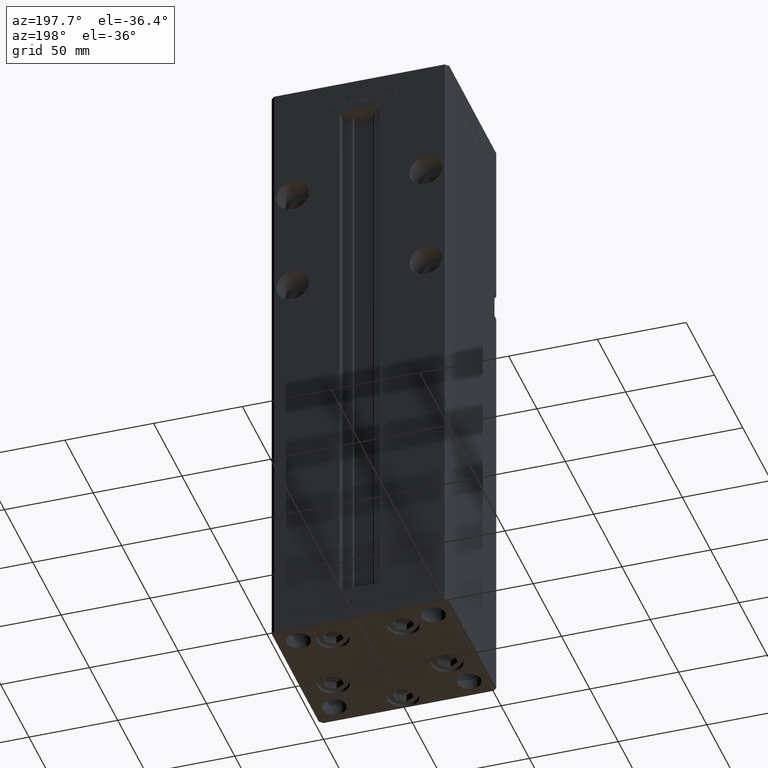
[diagram: clean part render]
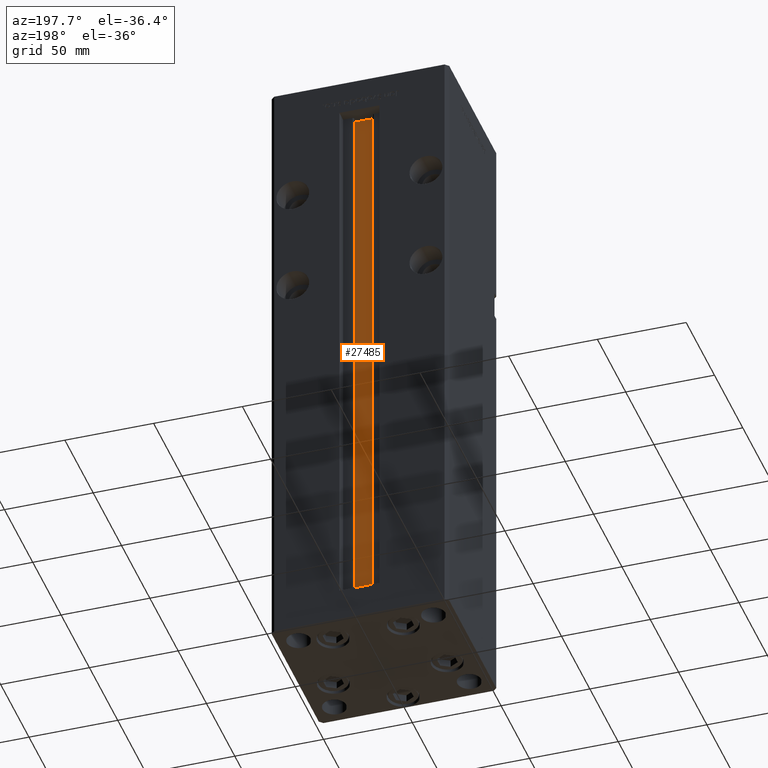
[diagram: same view with one face highlighted and labeled with its STEP entity id]
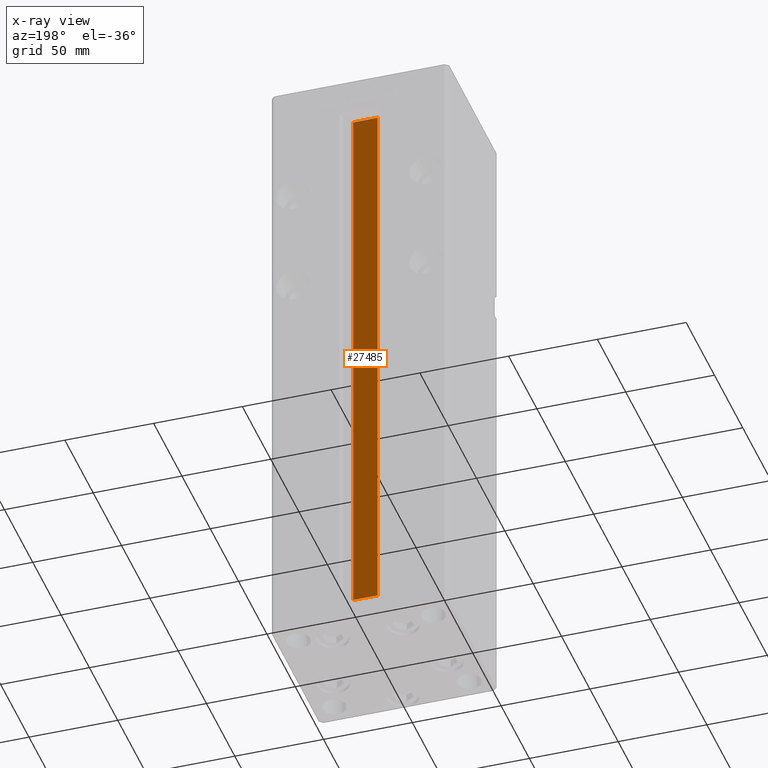
[diagram: x-ray of the same camera — body ghosted, the highlighted face saturated]
A machine part, auxiliary view. The second image highlights one B-rep face of the part: STEP entity #27485.
The next image is the same camera in x-ray: the body ghosted, the highlighted face saturated — about 0% of this face is hidden behind the body in this view.
In plain terms, the highlighted planar face has unit normal (0, -1, 0).
Its self-contained STEP definition (entity closure, byte-faithful):
#1278 = DIRECTION ( 'NONE',  ( 0.000000000000000000, -1.000000000000000000, -0.000000000000000000 ) ) ;
#1856 = LINE ( 'NONE', #26024, #45427 ) ;
#2151 = ORIENTED_EDGE ( 'NONE', *, *, #45936, .F. ) ;
#2451 = CARTESIAN_POINT ( 'NONE',  ( 6.876153656360465050, 32.99999999999986500, 0.000000000000000000 ) ) ;
#2874 = EDGE_LOOP ( 'NONE', ( #40485, #45469, #33333, #2151 ) ) ;
#3988 = CARTESIAN_POINT ( 'NONE',  ( 6.876153656360465050, 32.99999999999986500, 318.5000000000000000 ) ) ;
#6153 = DIRECTION ( 'NONE',  ( -0.000000000000000000, -0.000000000000000000, 1.000000000000000000 ) ) ;
#7233 = AXIS2_PLACEMENT_3D ( 'NONE', #21701, #1278, #9609 ) ;
#8572 = FACE_OUTER_BOUND ( 'NONE', #2874, .T. ) ;
#9609 = DIRECTION ( 'NONE',  ( 0.000000000000000000, 0.000000000000000000, -1.000000000000000000 ) ) ;
#18048 = LINE ( 'NONE', #30389, #41594 ) ;
#18498 = DIRECTION ( 'NONE',  ( -1.000000000000000000, 0.000000000000000000, 0.000000000000000000 ) ) ;
#21139 = VERTEX_POINT ( 'NONE', #31512 ) ;
#21571 = VERTEX_POINT ( 'NONE', #22202 ) ;
#21701 = CARTESIAN_POINT ( 'NONE',  ( 6.876153656360465050, 32.99999999999986500, 0.000000000000000000 ) ) ;
#22018 = VECTOR ( 'NONE', #37907, 1000.000000000000000 ) ;
#22202 = CARTESIAN_POINT ( 'NONE',  ( -6.876153656360465050, 32.99999999999986500, 318.5000000000000000 ) ) ;
#22337 = DIRECTION ( 'NONE',  ( 1.000000000000000000, -0.000000000000000000, -0.000000000000000000 ) ) ;
#26024 = CARTESIAN_POINT ( 'NONE',  ( 0.000000000000000000, 32.99999999999986500, 318.5000000000000000 ) ) ;
#26203 = VERTEX_POINT ( 'NONE', #2451 ) ;
#26578 = VERTEX_POINT ( 'NONE', #3988 ) ;
#27485 = ADVANCED_FACE ( 'NONE', ( #8572 ), #33257, .F. ) ;
#28549 = CARTESIAN_POINT ( 'NONE',  ( -6.876153656360465050, 32.99999999999986500, 0.000000000000000000 ) ) ;
#29072 = LINE ( 'NONE', #28549, #22018 ) ;
#29540 = EDGE_CURVE ( 'NONE', #21139, #26203, #18048, .T. ) ;
#30389 = CARTESIAN_POINT ( 'NONE',  ( 6.876153656360465050, 32.99999999999986500, 0.000000000000000000 ) ) ;
#30663 = EDGE_CURVE ( 'NONE', #26203, #26578, #50490, .T. ) ;
#31512 = CARTESIAN_POINT ( 'NONE',  ( -6.876153656360465050, 32.99999999999986500, 0.000000000000000000 ) ) ;
#33257 = PLANE ( 'NONE',  #7233 ) ;
#33333 = ORIENTED_EDGE ( 'NONE', *, *, #34801, .T. ) ;
#34801 = EDGE_CURVE ( 'NONE', #21139, #21571, #29072, .T. ) ;
#37907 = DIRECTION ( 'NONE',  ( -0.000000000000000000, -0.000000000000000000, 1.000000000000000000 ) ) ;
#40485 = ORIENTED_EDGE ( 'NONE', *, *, #30663, .F. ) ;
#41594 = VECTOR ( 'NONE', #22337, 1000.000000000000000 ) ;
#43348 = VECTOR ( 'NONE', #6153, 1000.000000000000000 ) ;
#45427 = VECTOR ( 'NONE', #18498, 1000.000000000000000 ) ;
#45469 = ORIENTED_EDGE ( 'NONE', *, *, #29540, .F. ) ;
#45936 = EDGE_CURVE ( 'NONE', #26578, #21571, #1856, .T. ) ;
#50490 = LINE ( 'NONE', #51293, #43348 ) ;
#51293 = CARTESIAN_POINT ( 'NONE',  ( 6.876153656360465050, 32.99999999999986500, 0.000000000000000000 ) ) ;